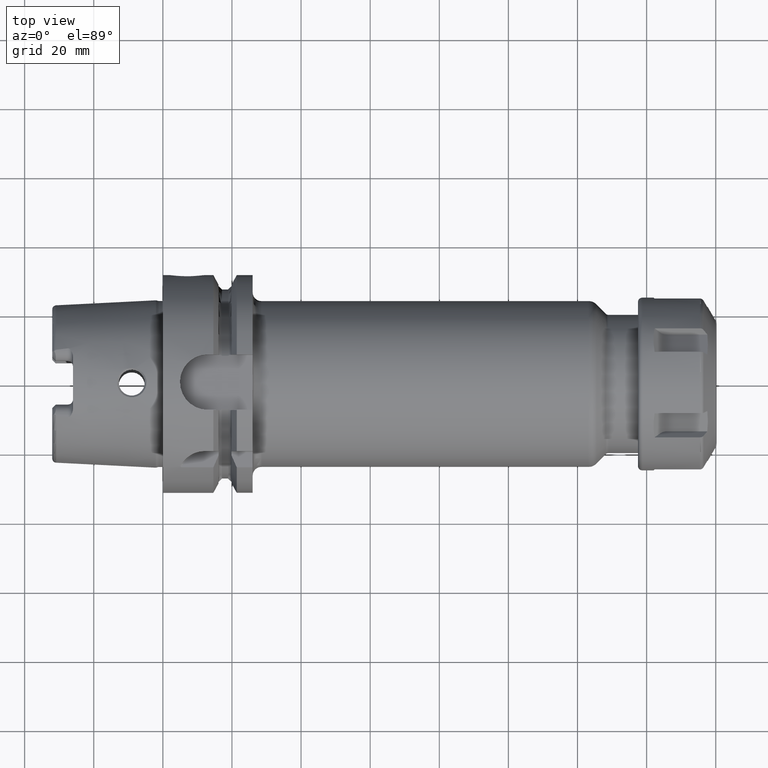
[diagram: clean part render]
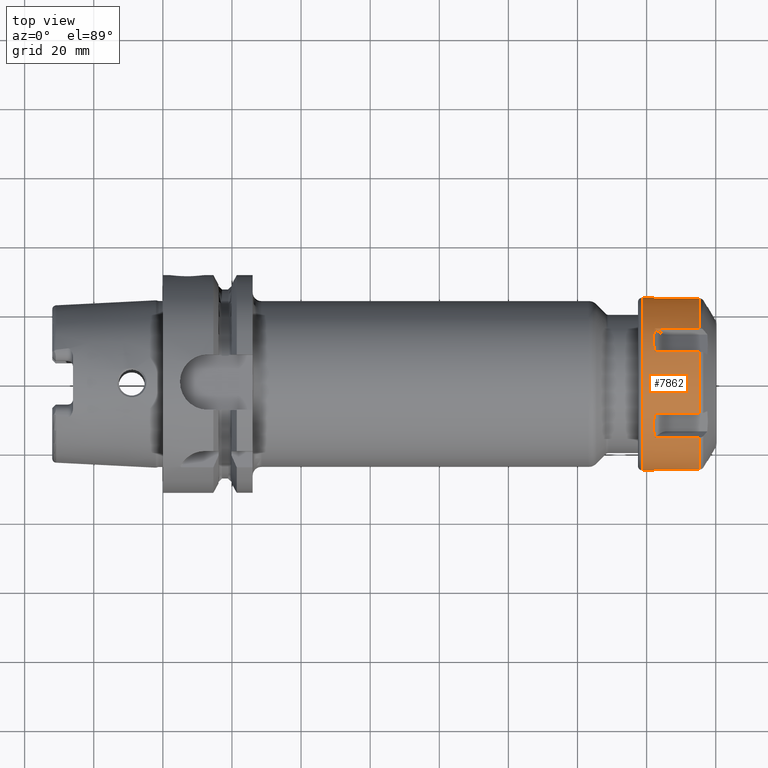
[diagram: same view with one face highlighted and labeled with its STEP entity id]
A machine part, top view. The second image highlights one B-rep face of the part: STEP entity #7862.
In plain terms, the highlighted cylindrical surface (partial cylindrical patch) has radius 25 mm, axis along (1, 0, 0).
Its self-contained STEP definition (entity closure, byte-faithful):
#6775=DIRECTION('',(-9.999994740307E-1,1.025640486187E-3,1.577133168835E-12));
#6776=VECTOR('',#6775,3.250001709401E0);
#6777=CARTESIAN_POINT('',(4.5E0,2.499666666667E1,1.417951640115E-14));
#6778=LINE('',#6777,#6776);
#6784=DIRECTION('',(-9.999994740307E-1,-1.025640486184E-3,-1.578379367537E-12));
#6785=VECTOR('',#6784,3.250001709401E0);
#6786=CARTESIAN_POINT('',(4.5E0,-2.499666666667E1,-1.240051271650E-14));
#6787=LINE('',#6786,#6785);
#6830=CARTESIAN_POINT('',(1.788119784648E1,1.577876823125E1,1.939150517893E1));
#6850=CARTESIAN_POINT('',(1.788119784648E1,2.468292021820E1,3.969061539222E0));
#6852=CARTESIAN_POINT('',(1.788119784648E1,-8.904151986948E0,2.336056671815E1));
#6872=CARTESIAN_POINT('',(1.788119784648E1,8.904151986948E0,2.336056671815E1));
#6874=CARTESIAN_POINT('',(1.788119784648E1,-2.468292021820E1,3.969061539222E0));
#6894=CARTESIAN_POINT('',(1.788119784648E1,-1.577876823125E1,1.939150517893E1));
#7104=DIRECTION('',(1.E0,0.E0,0.E0));
#7105=VECTOR('',#7104,1.307411806468E1);
#7106=CARTESIAN_POINT('',(4.807079781803E0,-2.468292021820E1,3.969061539222E0));
#7107=LINE('',#7106,#7105);
#7108=CARTESIAN_POINT('',(4.807079781803E0,-2.468292021820E1,3.969061539222E0));
#7109=CARTESIAN_POINT('',(4.729701493378E0,-2.476029850662E1,3.487859093522E0));
#7110=CARTESIAN_POINT('',(4.609219197891E0,-2.488166969100E1,2.550817383639E0));
#7111=CARTESIAN_POINT('',(4.504536623461E0,-2.498235226543E1,1.228026509027E0));
#7112=CARTESIAN_POINT('',(4.5E0,-2.499666666667E1,4.003888699202E-1));
#7113=CARTESIAN_POINT('',(4.5E0,-2.499666666667E1,-1.240051271650E-14));
#7115=CARTESIAN_POINT('',(1.25E0,0.E0,0.E0));
#7116=DIRECTION('',(-1.E0,0.E0,0.E0));
#7117=DIRECTION('',(0.E0,-1.E0,0.E0));
#7118=AXIS2_PLACEMENT_3D('',#7115,#7116,#7117);
#7120=CARTESIAN_POINT('',(4.5E0,2.499666666667E1,1.417951640115E-14));
#7121=CARTESIAN_POINT('',(4.5E0,2.499666666667E1,1.451714455632E-1));
#7122=CARTESIAN_POINT('',(4.487872521708E0,2.499903346707E1,4.463428212677E-1));
#7123=CARTESIAN_POINT('',(4.506996588005E0,2.498383245127E1,9.338081408940E-1));
#7124=CARTESIAN_POINT('',(4.530046438305E0,2.495973141581E1,1.454059244478E0));
#7125=CARTESIAN_POINT('',(4.569007848129E0,2.492105169613E1,2.013026454191E0));
#7126=CARTESIAN_POINT('',(4.624405857984E0,2.486557811087E1,2.614252934544E0));
#7127=CARTESIAN_POINT('',(4.700654693787E0,2.478934988654E1,3.262138709532E0));
#7128=CARTESIAN_POINT('',(4.768334245703E0,2.472166575430E1,3.728109624791E0));
#7129=CARTESIAN_POINT('',(4.807079781803E0,2.468292021820E1,3.969061539222E0));
#7131=DIRECTION('',(1.E0,0.E0,0.E0));
#7132=VECTOR('',#7131,1.307411806468E1);
#7133=CARTESIAN_POINT('',(4.807079781803E0,2.468292021820E1,3.969061539222E0));
#7134=LINE('',#7133,#7132);
#7135=CARTESIAN_POINT('',(1.788119784648E1,0.E0,0.E0));
#7136=DIRECTION('',(-1.E0,0.E0,0.E0));
#7137=DIRECTION('',(0.E0,6.311507292499E-1,7.756602071573E-1));
#7138=AXIS2_PLACEMENT_3D('',#7135,#7136,#7137);
#7140=DIRECTION('',(1.E0,0.E0,0.E0));
#7141=VECTOR('',#7140,1.307411806468E1);
#7142=CARTESIAN_POINT('',(4.807079781803E0,1.577876823125E1,1.939150517893E1));
#7143=LINE('',#7142,#7141);
#7144=CARTESIAN_POINT('',(4.807079781803E0,1.577876823125E1,1.939150517893E1));
#7145=CARTESIAN_POINT('',(4.381591242552E0,1.369997375277E1,2.108300957602E1));
#7146=CARTESIAN_POINT('',(4.381591242552E0,1.140843500467E1,2.240603008909E1));
#7147=CARTESIAN_POINT('',(4.807079781803E0,8.904151986948E0,2.336056671815E1));
#7149=DIRECTION('',(1.E0,0.E0,0.E0));
#7150=VECTOR('',#7149,1.307411806468E1);
#7151=CARTESIAN_POINT('',(4.807079781803E0,8.904151986948E0,2.336056671815E1));
#7152=LINE('',#7151,#7150);
#7153=CARTESIAN_POINT('',(1.788119784648E1,0.E0,0.E0));
#7154=DIRECTION('',(-1.E0,0.E0,0.E0));
#7155=DIRECTION('',(0.E0,-3.561660794779E-1,9.344226687262E-1));
#7156=AXIS2_PLACEMENT_3D('',#7153,#7154,#7155);
#7158=DIRECTION('',(1.E0,0.E0,0.E0));
#7159=VECTOR('',#7158,1.307411806468E1);
#7160=CARTESIAN_POINT('',(4.807079781803E0,-8.904151986948E0,2.336056671815E1));
#7161=LINE('',#7160,#7159);
#7162=CARTESIAN_POINT('',(4.807079781803E0,-8.904151986948E0,2.336056671815E1));
#7163=CARTESIAN_POINT('',(4.381591242552E0,-1.140843500467E1,2.240603008909E1));
#7164=CARTESIAN_POINT('',(4.381591242552E0,-1.369997375277E1,2.108300957602E1));
#7165=CARTESIAN_POINT('',(4.807079781803E0,-1.577876823125E1,1.939150517893E1));
#7167=DIRECTION('',(1.E0,0.E0,0.E0));
#7168=VECTOR('',#7167,1.307411806468E1);
#7169=CARTESIAN_POINT('',(4.807079781803E0,-1.577876823125E1,1.939150517893E1));
#7170=LINE('',#7169,#7168);
#7171=CARTESIAN_POINT('',(1.788119784648E1,0.E0,0.E0));
#7172=DIRECTION('',(-1.E0,0.E0,0.E0));
#7173=DIRECTION('',(0.E0,-9.873168087279E-1,1.587624615689E-1));
#7174=AXIS2_PLACEMENT_3D('',#7171,#7172,#7173);
#7334=CARTESIAN_POINT('',(1.25E0,2.5E1,0.E0));
#7335=CARTESIAN_POINT('',(1.25E0,-2.5E1,0.E0));
#7336=VERTEX_POINT('',#7334);
#7337=VERTEX_POINT('',#7335);
#7343=VERTEX_POINT('',#6850);
#7345=CARTESIAN_POINT('',(4.807079781803E0,2.468292021820E1,3.969061539222E0));
#7346=VERTEX_POINT('',#7345);
#7358=VERTEX_POINT('',#6872);
#7359=VERTEX_POINT('',#6830);
#7360=CARTESIAN_POINT('',(4.807079781803E0,8.904151986948E0,2.336056671815E1));
#7361=VERTEX_POINT('',#7360);
#7362=CARTESIAN_POINT('',(4.807079781803E0,1.577876823125E1,1.939150517893E1));
#7363=VERTEX_POINT('',#7362);
#7373=VERTEX_POINT('',#6894);
#7374=VERTEX_POINT('',#6852);
#7375=CARTESIAN_POINT('',(4.807079781803E0,-1.577876823125E1,1.939150517893E1));
#7376=VERTEX_POINT('',#7375);
#7377=CARTESIAN_POINT('',(4.807079781803E0,-8.904151986948E0,2.336056671815E1));
#7378=VERTEX_POINT('',#7377);
#7390=VERTEX_POINT('',#6874);
#7391=CARTESIAN_POINT('',(4.807079781803E0,-2.468292021820E1,3.969061539222E0));
#7392=VERTEX_POINT('',#7391);
#7430=CARTESIAN_POINT('',(4.5E0,-2.499666666667E1,-1.240051271650E-14));
#7431=VERTEX_POINT('',#7430);
#7432=CARTESIAN_POINT('',(4.5E0,2.499666666667E1,1.417951640115E-14));
#7433=VERTEX_POINT('',#7432);
#7831=CARTESIAN_POINT('',(-1.125E0,0.E0,0.E0));
#7832=DIRECTION('',(1.E0,0.E0,0.E0));
#7833=DIRECTION('',(0.E0,-1.E0,0.E0));
#7834=AXIS2_PLACEMENT_3D('',#7831,#7832,#7833);
#7835=CYLINDRICAL_SURFACE('',#7834,2.5E1);
#7836=ORIENTED_EDGE('',*,*,#7794,.F.);
#7837=ORIENTED_EDGE('',*,*,#7811,.T.);
#7838=ORIENTED_EDGE('',*,*,#7567,.T.);
#7840=ORIENTED_EDGE('',*,*,#7839,.T.);
#7841=ORIENTED_EDGE('',*,*,#7563,.F.);
#7843=ORIENTED_EDGE('',*,*,#7842,.T.);
#7845=ORIENTED_EDGE('',*,*,#7844,.T.);
#7846=ORIENTED_EDGE('',*,*,#7594,.F.);
#7847=ORIENTED_EDGE('',*,*,#7684,.F.);
#7849=ORIENTED_EDGE('',*,*,#7848,.T.);
#7851=ORIENTED_EDGE('',*,*,#7850,.T.);
#7852=ORIENTED_EDGE('',*,*,#7610,.F.);
#7854=ORIENTED_EDGE('',*,*,#7853,.F.);
#7856=ORIENTED_EDGE('',*,*,#7855,.T.);
#7858=ORIENTED_EDGE('',*,*,#7857,.T.);
#7859=ORIENTED_EDGE('',*,*,#7626,.F.);
#7860=EDGE_LOOP('',(#7836,#7837,#7838,#7840,#7841,#7843,#7845,#7846,#7847,#7849,
#7851,#7852,#7854,#7856,#7858,#7859));
#7861=FACE_OUTER_BOUND('',#7860,.F.);
#7862=ADVANCED_FACE('',(#7861),#7835,.T.);
#7114=B_SPLINE_CURVE_WITH_KNOTS('',3,(#7108,#7109,#7110,#7111,#7112,#7113),
.UNSPECIFIED.,.F.,.F.,(4,1,1,4),(0.E0,3.333333333333E-1,6.666666666667E-1,1.E0),
.UNSPECIFIED.);
#7119=CIRCLE('',#7118,2.5E1);
#7130=B_SPLINE_CURVE_WITH_KNOTS('',3,(#7120,#7121,#7122,#7123,#7124,#7125,#7126,
#7127,#7128,#7129),.UNSPECIFIED.,.F.,.F.,(4,1,1,1,1,1,1,4),(0.E0,
1.428571428571E-1,2.857142857143E-1,4.285714285714E-1,5.714285714286E-1,
7.142857142857E-1,8.571428571429E-1,1.E0),.UNSPECIFIED.);
#7139=CIRCLE('',#7138,2.5E1);
#7148=B_SPLINE_CURVE_WITH_KNOTS('',3,(#7144,#7145,#7146,#7147),.UNSPECIFIED.,
.F.,.F.,(4,4),(0.E0,1.E0),.UNSPECIFIED.);
#7157=CIRCLE('',#7156,2.5E1);
#7166=B_SPLINE_CURVE_WITH_KNOTS('',3,(#7162,#7163,#7164,#7165),.UNSPECIFIED.,
.F.,.F.,(4,4),(0.E0,1.E0),.UNSPECIFIED.);
#7175=CIRCLE('',#7174,2.5E1);
#7563=EDGE_CURVE('',#7433,#7336,#6778,.T.);
#7567=EDGE_CURVE('',#7431,#7337,#6787,.T.);
#7594=EDGE_CURVE('',#7359,#7343,#7139,.T.);
#7610=EDGE_CURVE('',#7374,#7358,#7157,.T.);
#7626=EDGE_CURVE('',#7390,#7373,#7175,.T.);
#7684=EDGE_CURVE('',#7363,#7359,#7143,.T.);
#7794=EDGE_CURVE('',#7392,#7390,#7107,.T.);
#7811=EDGE_CURVE('',#7392,#7431,#7114,.T.);
#7839=EDGE_CURVE('',#7337,#7336,#7119,.T.);
#7842=EDGE_CURVE('',#7433,#7346,#7130,.T.);
#7844=EDGE_CURVE('',#7346,#7343,#7134,.T.);
#7848=EDGE_CURVE('',#7363,#7361,#7148,.T.);
#7850=EDGE_CURVE('',#7361,#7358,#7152,.T.);
#7853=EDGE_CURVE('',#7378,#7374,#7161,.T.);
#7855=EDGE_CURVE('',#7378,#7376,#7166,.T.);
#7857=EDGE_CURVE('',#7376,#7373,#7170,.T.);